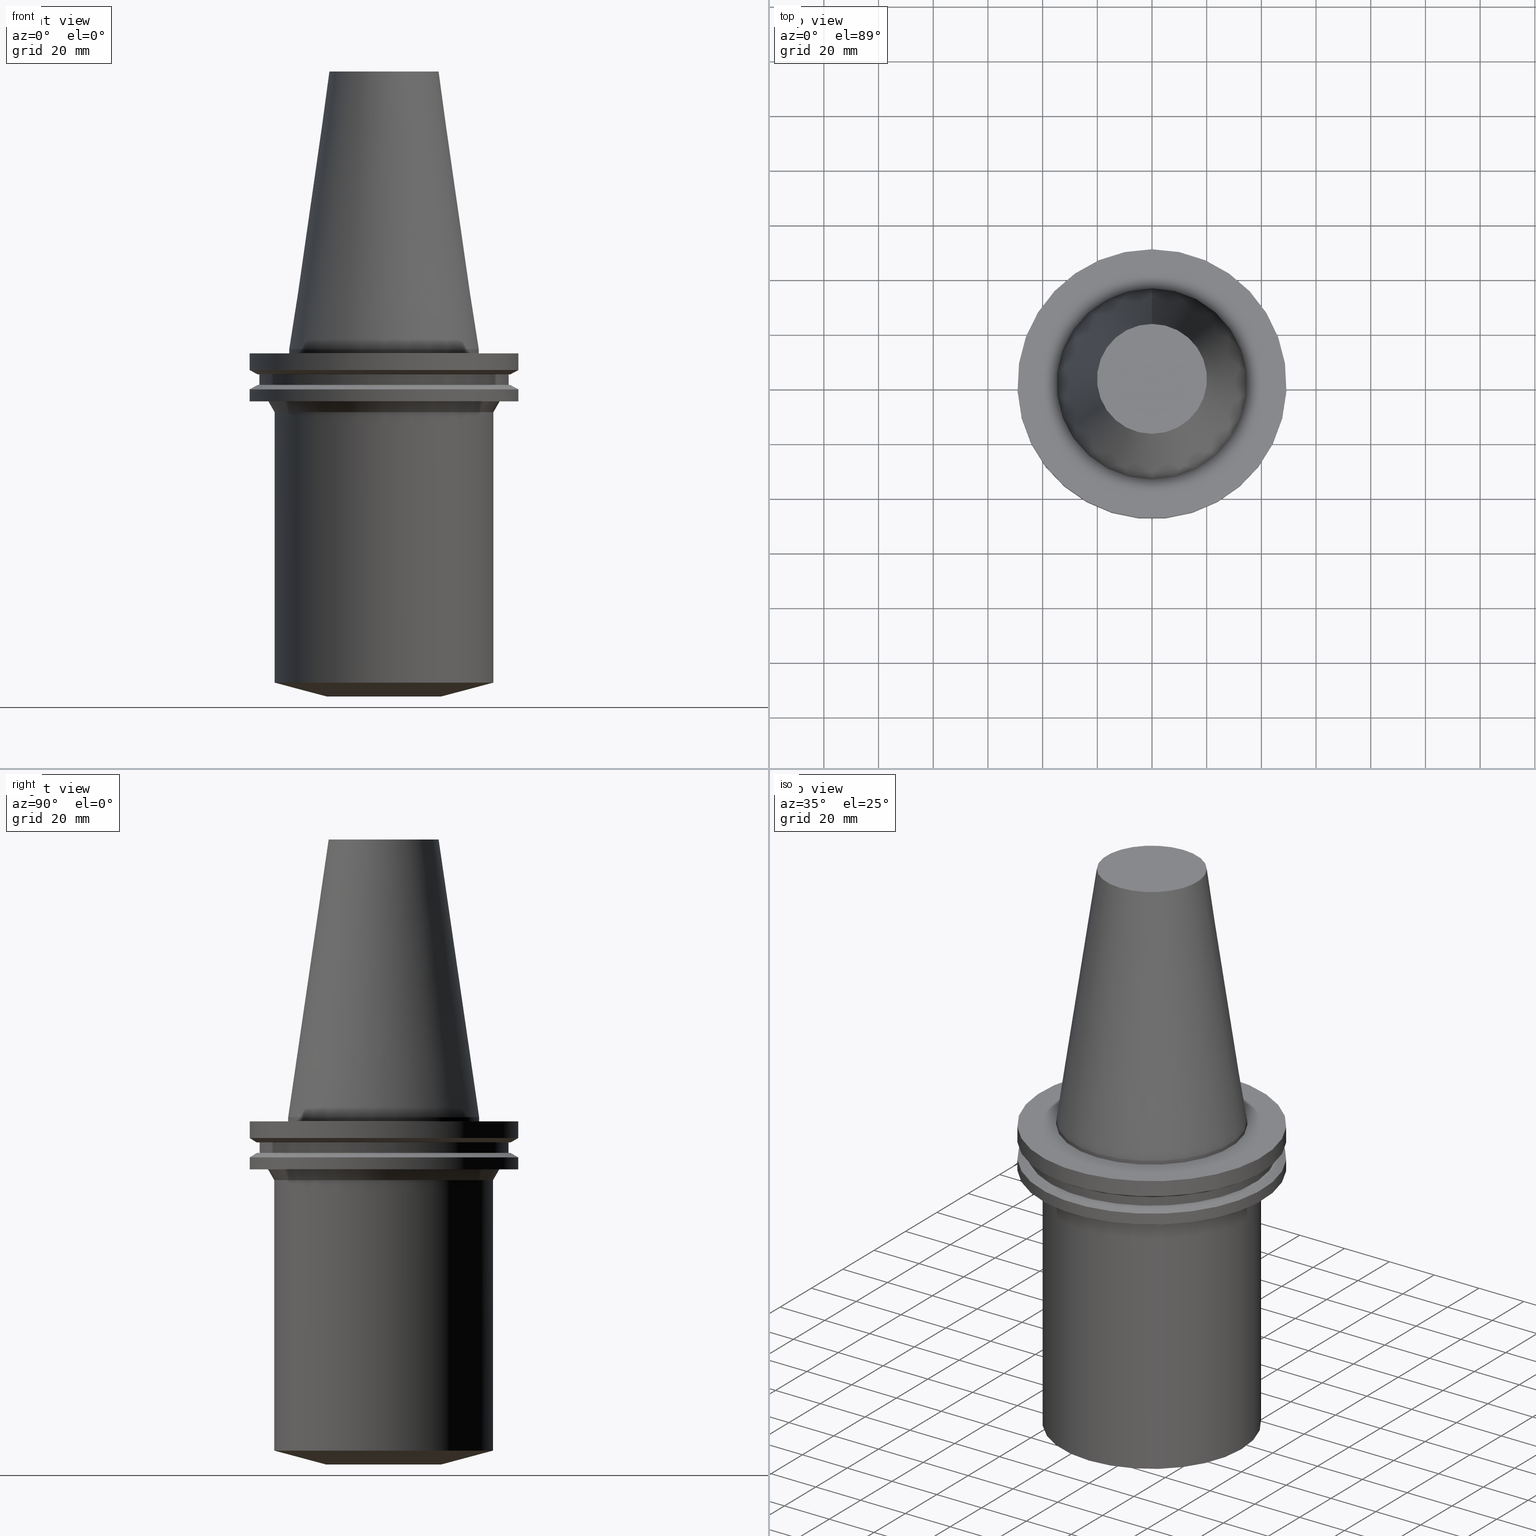
[diagram: canonical four-view strip — front | top / right | iso, engineering-drawing reading convention]
A machine part, canonical four-view strip (front | top / right | iso — engineering-drawing reading convention). The complete STEP part file that produces these views, byte-faithful:
ISO-10303-21;
HEADER;
FILE_DESCRIPTION((''),'1');
FILE_NAME('V:/01_Dxf_Field-HP\X2\FF71FF6FFF8CFF9F5916\X0\2013/BIGKAISER\X2\FF76FF80FF9BFF78FF9E63B28F095206\X0\_BKUS_201803/BCV50Y-BSL/BCV50Y-BSL1.500-5.stp','2018-03-13T06:55:56',(''),(''),'Spatial Interop R21 SP3','Kubotek KeyCreator 2011 V10.0.2 (22737)',' ');
FILE_SCHEMA(('automotive_design'));
ENDSEC;
DATA;
#1=MECHANICAL_DESIGN_GEOMETRIC_PRESENTATION_REPRESENTATION(' ',(#10,#11,#12,#13,#14,#15,#16,#17,#18,#19,#20,#21,#22,#23,#24,#25,#26,#27,#28,#29,#30,#31,#32,#33,#34,#35,#36,#37,#38,#39,#40,#41),#6);
#2=PRODUCT_DEFINITION_CONTEXT('',#42,'design');
#3=APPLICATION_PROTOCOL_DEFINITION('INTERNATIONAL STANDARD','automotive_design',1994,#42);
#4=PRODUCT_CATEGORY_RELATIONSHIP('NONE','NONE',#43,#44);
#5=SHAPE_DEFINITION_REPRESENTATION(#45,#46);
#6= (GEOMETRIC_REPRESENTATION_CONTEXT(3)GLOBAL_UNCERTAINTY_ASSIGNED_CONTEXT((#49))GLOBAL_UNIT_ASSIGNED_CONTEXT((#51,#52,#53))REPRESENTATION_CONTEXT('NONE','WORKSPACE'));
#10=STYLED_ITEM('',(#55),#56);
#11=STYLED_ITEM('',(#57),#58);
#12=STYLED_ITEM('',(#59,#60),#61);
#13=STYLED_ITEM('',(#62),#63);
#14=STYLED_ITEM('',(#64),#65);
#15=STYLED_ITEM('',(#66,#67),#68);
#16=STYLED_ITEM('',(#69),#70);
#17=STYLED_ITEM('',(#71,#72),#73);
#18=STYLED_ITEM('',(#74,#75),#76);
#19=STYLED_ITEM('',(#77,#78),#79);
#20=STYLED_ITEM('',(#80),#81);
#21=STYLED_ITEM('',(#82),#83);
#22=STYLED_ITEM('',(#84,#85),#86);
#23=STYLED_ITEM('',(#87,#88),#89);
#24=STYLED_ITEM('',(#90),#91);
#25=STYLED_ITEM('',(#92),#93);
#26=STYLED_ITEM('',(#94),#95);
#27=STYLED_ITEM('',(#96),#97);
#28=STYLED_ITEM('',(#98,#99),#100);
#29=STYLED_ITEM('',(#101),#102);
#30=STYLED_ITEM('',(#103,#104),#105);
#31=STYLED_ITEM('',(#106,#107),#108);
#32=STYLED_ITEM('',(#109,#110),#111);
#33=STYLED_ITEM('',(#112,#113),#114);
#34=STYLED_ITEM('',(#115,#116),#117);
#35=STYLED_ITEM('',(#118),#119);
#36=STYLED_ITEM('',(#120,#121),#122);
#37=STYLED_ITEM('',(#123),#124);
#38=STYLED_ITEM('',(#125,#126),#127);
#39=STYLED_ITEM('',(#128),#129);
#40=STYLED_ITEM('',(#130,#131),#132);
#41=STYLED_ITEM('',(#133,#134),#135);
#42=APPLICATION_CONTEXT(' ');
#43=PRODUCT_CATEGORY('part','NONE');
#44=PRODUCT_RELATED_PRODUCT_CATEGORY('detail',' ',(#136));
#45=PRODUCT_DEFINITION_SHAPE('NONE','NONE',#137);
#46=ADVANCED_BREP_SHAPE_REPRESENTATION('Unnamed[1]',(#127,#138),#6);
#49=UNCERTAINTY_MEASURE_WITH_UNIT(LENGTH_MEASURE(1.0E-006),#51,'','');
#51= (CONVERSION_BASED_UNIT('MILLIMETRE',#141)LENGTH_UNIT()NAMED_UNIT(#144));
#52= (NAMED_UNIT(#146)PLANE_ANGLE_UNIT()SI_UNIT($,.RADIAN.));
#53= (NAMED_UNIT(#146)SOLID_ANGLE_UNIT()SI_UNIT($,.STERADIAN.));
#55=PRESENTATION_STYLE_ASSIGNMENT((#152));
#56=EDGE_CURVE('Unnamed[1]',#153,#153,#154,.T.);
#57=PRESENTATION_STYLE_ASSIGNMENT((#155));
#58=EDGE_CURVE('Unnamed[1]',#156,#156,#157,.T.);
#59=PRESENTATION_STYLE_ASSIGNMENT((#158));
#60=PRESENTATION_STYLE_ASSIGNMENT((#159));
#61=ADVANCED_FACE('Unnamed[1]',(#160),#161,.T.);
#62=PRESENTATION_STYLE_ASSIGNMENT((#162));
#63=EDGE_CURVE('Unnamed[1]',#163,#163,#164,.T.);
#64=PRESENTATION_STYLE_ASSIGNMENT((#165));
#65=EDGE_CURVE('Unnamed[1]',#166,#166,#167,.T.);
#66=PRESENTATION_STYLE_ASSIGNMENT((#168));
#67=PRESENTATION_STYLE_ASSIGNMENT((#169));
#68=ADVANCED_FACE('Unnamed[1]',(#170,#171),#172,.T.);
#69=PRESENTATION_STYLE_ASSIGNMENT((#173));
#70=EDGE_CURVE('Unnamed[1]',#174,#174,#175,.T.);
#71=PRESENTATION_STYLE_ASSIGNMENT((#176));
#72=PRESENTATION_STYLE_ASSIGNMENT((#177));
#73=ADVANCED_FACE('Unnamed[1]',(#178,#179),#180,.T.);
#74=PRESENTATION_STYLE_ASSIGNMENT((#181));
#75=PRESENTATION_STYLE_ASSIGNMENT((#182));
#76=ADVANCED_FACE('Unnamed[1]',(#183,#184),#185,.T.);
#77=PRESENTATION_STYLE_ASSIGNMENT((#186));
#78=PRESENTATION_STYLE_ASSIGNMENT((#187));
#79=ADVANCED_FACE('Unnamed[1]',(#188,#189),#190,.T.);
#80=PRESENTATION_STYLE_ASSIGNMENT((#191));
#81=EDGE_CURVE('Unnamed[1]',#192,#192,#193,.T.);
#82=PRESENTATION_STYLE_ASSIGNMENT((#194));
#83=EDGE_CURVE('Unnamed[1]',#195,#195,#196,.T.);
#84=PRESENTATION_STYLE_ASSIGNMENT((#197));
#85=PRESENTATION_STYLE_ASSIGNMENT((#198));
#86=ADVANCED_FACE('Unnamed[1]',(#199,#200),#201,.T.);
#87=PRESENTATION_STYLE_ASSIGNMENT((#202));
#88=PRESENTATION_STYLE_ASSIGNMENT((#203));
#89=ADVANCED_FACE('Unnamed[1]',(#204),#205,.T.);
#90=PRESENTATION_STYLE_ASSIGNMENT((#206));
#91=EDGE_CURVE('Unnamed[1]',#207,#207,#208,.T.);
#92=PRESENTATION_STYLE_ASSIGNMENT((#209));
#93=EDGE_CURVE('Unnamed[1]',#210,#210,#211,.T.);
#94=PRESENTATION_STYLE_ASSIGNMENT((#212));
#95=EDGE_CURVE('Unnamed[1]',#213,#213,#214,.T.);
#96=PRESENTATION_STYLE_ASSIGNMENT((#215));
#97=EDGE_CURVE('Unnamed[1]',#216,#216,#217,.T.);
#98=PRESENTATION_STYLE_ASSIGNMENT((#218));
#99=PRESENTATION_STYLE_ASSIGNMENT((#219));
#100=ADVANCED_FACE('Unnamed[1]',(#220,#221),#222,.T.);
#101=PRESENTATION_STYLE_ASSIGNMENT((#223));
#102=EDGE_CURVE('Unnamed[1]',#224,#224,#225,.T.);
#103=PRESENTATION_STYLE_ASSIGNMENT((#226));
#104=PRESENTATION_STYLE_ASSIGNMENT((#227));
#105=ADVANCED_FACE('Unnamed[1]',(#228,#229),#230,.T.);
#106=PRESENTATION_STYLE_ASSIGNMENT((#231));
#107=PRESENTATION_STYLE_ASSIGNMENT((#232));
#108=ADVANCED_FACE('Unnamed[1]',(#233,#234),#235,.T.);
#109=PRESENTATION_STYLE_ASSIGNMENT((#236));
#110=PRESENTATION_STYLE_ASSIGNMENT((#237));
#111=ADVANCED_FACE('Unnamed[1]',(#238,#239),#240,.T.);
#112=PRESENTATION_STYLE_ASSIGNMENT((#241));
#113=PRESENTATION_STYLE_ASSIGNMENT((#242));
#114=ADVANCED_FACE('Unnamed[1]',(#243,#244),#245,.T.);
#115=PRESENTATION_STYLE_ASSIGNMENT((#246));
#116=PRESENTATION_STYLE_ASSIGNMENT((#247));
#117=ADVANCED_FACE('Unnamed[1]',(#248,#249),#250,.T.);
#118=PRESENTATION_STYLE_ASSIGNMENT((#251));
#119=EDGE_CURVE('Unnamed[1]',#252,#252,#253,.T.);
#120=PRESENTATION_STYLE_ASSIGNMENT((#254));
#121=PRESENTATION_STYLE_ASSIGNMENT((#255));
#122=ADVANCED_FACE('Unnamed[1]',(#256,#257),#258,.T.);
#123=PRESENTATION_STYLE_ASSIGNMENT((#259));
#124=EDGE_CURVE('Unnamed[1]',#260,#260,#261,.T.);
#125=PRESENTATION_STYLE_ASSIGNMENT((#262));
#126=PRESENTATION_STYLE_ASSIGNMENT((#263));
#127=MANIFOLD_SOLID_BREP('Unnamed[1]',#264);
#128=PRESENTATION_STYLE_ASSIGNMENT((#265));
#129=EDGE_CURVE('Unnamed[1]',#266,#266,#267,.T.);
#130=PRESENTATION_STYLE_ASSIGNMENT((#268));
#131=PRESENTATION_STYLE_ASSIGNMENT((#269));
#132=ADVANCED_FACE('Unnamed[1]',(#270,#271),#272,.T.);
#133=PRESENTATION_STYLE_ASSIGNMENT((#273));
#134=PRESENTATION_STYLE_ASSIGNMENT((#274));
#135=ADVANCED_FACE('Unnamed[1]',(#275,#276),#277,.T.);
#136=PRODUCT('Unnamed[1]','Unnamed[1]','PART-Unnamed[1]-DESC',(#278));
#137=PRODUCT_DEFINITION('NONE','NONE',#279,#2);
#138=AXIS2_PLACEMENT_3D('',#280,#281,#282);
#141=LENGTH_MEASURE_WITH_UNIT(LENGTH_MEASURE(1.0),#283);
#144=DIMENSIONAL_EXPONENTS(1.0,0.0,0.0,0.0,0.0,0.0,0.0);
#146=DIMENSIONAL_EXPONENTS(0.0,0.0,0.0,0.0,0.0,0.0,0.0);
#152=CURVE_STYLE('',#284,POSITIVE_LENGTH_MEASURE(1000.0),#285);
#153=VERTEX_POINT('',#286);
#154=CIRCLE('',#287,46.43053755);
#155=CURVE_STYLE('',#288,POSITIVE_LENGTH_MEASURE(1000.0),#289);
#156=VERTEX_POINT('',#290);
#157=CIRCLE('',#291,34.925);
#158=SURFACE_STYLE_USAGE(.BOTH.,#292);
#159=CURVE_STYLE('',#293,POSITIVE_LENGTH_MEASURE(1000.0),#294);
#160=FACE_OUTER_BOUND('',#295,.T.);
#161=PLANE('',#296);
#162=CURVE_STYLE('',#297,POSITIVE_LENGTH_MEASURE(1000.0),#298);
#163=VERTEX_POINT('',#299);
#164=CIRCLE('',#300,45.645);
#165=CURVE_STYLE('',#301,POSITIVE_LENGTH_MEASURE(1000.0),#302);
#166=VERTEX_POINT('',#303);
#167=CIRCLE('',#304,46.43053755);
#168=SURFACE_STYLE_USAGE(.BOTH.,#305);
#169=CURVE_STYLE('',#306,POSITIVE_LENGTH_MEASURE(1000.0),#307);
#170=FACE_OUTER_BOUND('',#308,.T.);
#171=FACE_BOUND('',#309,.T.);
#172=PLANE('',#310);
#173=CURVE_STYLE('',#311,POSITIVE_LENGTH_MEASURE(1000.0),#312);
#174=VERTEX_POINT('',#313);
#175=CIRCLE('',#314,20.9999999999951);
#176=SURFACE_STYLE_USAGE(.BOTH.,#315);
#177=CURVE_STYLE('',#316,POSITIVE_LENGTH_MEASURE(1000.0),#317);
#178=FACE_BOUND('',#318,.T.);
#179=FACE_BOUND('',#319,.T.);
#180=CONICAL_SURFACE('',#320,27.5166666648609,0.144812498273746);
#181=SURFACE_STYLE_USAGE(.BOTH.,#321);
#182=CURVE_STYLE('',#322,POSITIVE_LENGTH_MEASURE(1000.0),#323);
#183=FACE_BOUND('',#324,.T.);
#184=FACE_OUTER_BOUND('',#325,.T.);
#185=PLANE('',#326);
#186=SURFACE_STYLE_USAGE(.BOTH.,#327);
#187=CURVE_STYLE('',#328,POSITIVE_LENGTH_MEASURE(1000.0),#329);
#188=FACE_BOUND('',#330,.T.);
#189=FACE_BOUND('',#331,.T.);
#190=CONICAL_SURFACE('',#332,41.1402667816468,0.523598775598408);
#191=CURVE_STYLE('',#333,POSITIVE_LENGTH_MEASURE(1000.0),#334);
#192=VERTEX_POINT('',#335);
#193=CIRCLE('',#336,42.2805335632962);
#194=CURVE_STYLE('',#337,POSITIVE_LENGTH_MEASURE(1000.0),#338);
#195=VERTEX_POINT('',#339);
#196=CIRCLE('',#340,20.1083333297217);
#197=SURFACE_STYLE_USAGE(.BOTH.,#341);
#198=CURVE_STYLE('',#342,POSITIVE_LENGTH_MEASURE(1000.0),#343);
#199=FACE_BOUND('',#344,.T.);
#200=FACE_BOUND('',#345,.T.);
#201=CYLINDRICAL_SURFACE('',#346,34.925);
#202=SURFACE_STYLE_USAGE(.BOTH.,#347);
#203=CURVE_STYLE('',#348,POSITIVE_LENGTH_MEASURE(1000.0),#349);
#204=FACE_OUTER_BOUND('',#350,.T.);
#205=PLANE('',#351);
#206=CURVE_STYLE('',#352,POSITIVE_LENGTH_MEASURE(1000.0),#353);
#207=VERTEX_POINT('',#354);
#208=CIRCLE('',#355,49.2125);
#209=CURVE_STYLE('',#356,POSITIVE_LENGTH_MEASURE(1000.0),#357);
#210=VERTEX_POINT('',#358);
#211=CIRCLE('',#359,39.9999999999974);
#212=CURVE_STYLE('',#360,POSITIVE_LENGTH_MEASURE(1000.0),#361);
#213=VERTEX_POINT('',#362);
#214=CIRCLE('',#363,49.2125);
#215=CURVE_STYLE('',#364,POSITIVE_LENGTH_MEASURE(1000.0),#365);
#216=VERTEX_POINT('',#366);
#217=CIRCLE('',#367,34.925);
#218=SURFACE_STYLE_USAGE(.BOTH.,#368);
#219=CURVE_STYLE('',#369,POSITIVE_LENGTH_MEASURE(1000.0),#370);
#220=FACE_BOUND('',#371,.T.);
#221=FACE_BOUND('',#372,.T.);
#222=CYLINDRICAL_SURFACE('',#373,49.2125);
#223=CURVE_STYLE('',#374,POSITIVE_LENGTH_MEASURE(1000.0),#375);
#224=VERTEX_POINT('',#376);
#225=CIRCLE('',#377,49.2125);
#226=SURFACE_STYLE_USAGE(.BOTH.,#378);
#227=CURVE_STYLE('',#379,POSITIVE_LENGTH_MEASURE(1000.0),#380);
#228=FACE_BOUND('',#381,.T.);
#229=FACE_BOUND('',#382,.T.);
#230=CONICAL_SURFACE('',#383,30.499999999996,1.30899693899583);
#231=SURFACE_STYLE_USAGE(.BOTH.,#384);
#232=CURVE_STYLE('',#385,POSITIVE_LENGTH_MEASURE(1000.0),#386);
#233=FACE_BOUND('',#387,.T.);
#234=FACE_OUTER_BOUND('',#388,.T.);
#235=PLANE('',#389);
#236=SURFACE_STYLE_USAGE(.BOTH.,#390);
#237=CURVE_STYLE('',#391,POSITIVE_LENGTH_MEASURE(1000.0),#392);
#238=FACE_BOUND('',#393,.T.);
#239=FACE_BOUND('',#394,.T.);
#240=CONICAL_SURFACE('',#395,47.821518775,1.04719755103024);
#241=SURFACE_STYLE_USAGE(.BOTH.,#396);
#242=CURVE_STYLE('',#397,POSITIVE_LENGTH_MEASURE(1000.0),#398);
#243=FACE_OUTER_BOUND('',#399,.T.);
#244=FACE_BOUND('',#400,.T.);
#245=PLANE('',#401);
#246=SURFACE_STYLE_USAGE(.BOTH.,#402);
#247=CURVE_STYLE('',#403,POSITIVE_LENGTH_MEASURE(1000.0),#404);
#248=FACE_BOUND('',#405,.T.);
#249=FACE_BOUND('',#406,.T.);
#250=CYLINDRICAL_SURFACE('',#407,49.2125);
#251=CURVE_STYLE('',#408,POSITIVE_LENGTH_MEASURE(1000.0),#409);
#252=VERTEX_POINT('',#410);
#253=CIRCLE('',#411,45.645);
#254=SURFACE_STYLE_USAGE(.BOTH.,#412);
#255=CURVE_STYLE('',#413,POSITIVE_LENGTH_MEASURE(1000.0),#414);
#256=FACE_BOUND('',#415,.T.);
#257=FACE_BOUND('',#416,.T.);
#258=CYLINDRICAL_SURFACE('',#417,39.9999999999972);
#259=CURVE_STYLE('',#418,POSITIVE_LENGTH_MEASURE(1000.0),#419);
#260=VERTEX_POINT('',#420);
#261=CIRCLE('',#421,39.9999999999969);
#262=SURFACE_STYLE_USAGE(.BOTH.,#422);
#263=CURVE_STYLE('',#423,POSITIVE_LENGTH_MEASURE(1000.0),#424);
#264=CLOSED_SHELL('',(#61,#73,#86,#68,#117,#111,#108,#132,#114,#135,#100,#76,#79,#122,#105,#89));
#265=CURVE_STYLE('',#425,POSITIVE_LENGTH_MEASURE(1000.0),#426);
#266=VERTEX_POINT('',#427);
#267=CIRCLE('',#428,49.2125);
#268=SURFACE_STYLE_USAGE(.BOTH.,#429);
#269=CURVE_STYLE('',#430,POSITIVE_LENGTH_MEASURE(1000.0),#431);
#270=FACE_BOUND('',#432,.T.);
#271=FACE_BOUND('',#433,.T.);
#272=CYLINDRICAL_SURFACE('',#434,45.645);
#273=SURFACE_STYLE_USAGE(.BOTH.,#435);
#274=CURVE_STYLE('',#436,POSITIVE_LENGTH_MEASURE(1000.0),#437);
#275=FACE_BOUND('',#438,.T.);
#276=FACE_BOUND('',#439,.T.);
#277=CONICAL_SURFACE('',#440,47.821518775,1.04719755103023);
#278=PRODUCT_CONTEXT('',#42,'mechanical');
#279=PRODUCT_DEFINITION_FORMATION_WITH_SPECIFIED_SOURCE(' ','NONE',#136,.NOT_KNOWN.);
#280=CARTESIAN_POINT('',(0.0,0.0,0.0));
#281=DIRECTION('',(0.0,0.0,1.0));
#282=DIRECTION('',(1.0,0.0,0.0));
#283= (NAMED_UNIT(#144)LENGTH_UNIT()SI_UNIT(.MILLI.,.METRE.));
#284=DRAUGHTING_PRE_DEFINED_CURVE_FONT('continuous');
#285=COLOUR_RGB('',0.0,1.0,0.0);
#286=CARTESIAN_POINT('',(5.63337527607782E-016,46.43053755,-9.2));
#287=AXIS2_PLACEMENT_3D('',#442,#443,#444);
#288=DRAUGHTING_PRE_DEFINED_CURVE_FONT('continuous');
#289=COLOUR_RGB('',0.0,1.0,0.0);
#290=CARTESIAN_POINT('',(-4.30483861169435E-031,34.925,4.27707894602213E-015));
#291=AXIS2_PLACEMENT_3D('',#445,#446,#447);
#292=SURFACE_SIDE_STYLE('',(#448));
#293=DRAUGHTING_PRE_DEFINED_CURVE_FONT('continuous');
#294=COLOUR_RGB('',0.0,1.0,0.0);
#295=EDGE_LOOP('',(#449));
#296=AXIS2_PLACEMENT_3D('',#450,#451,#452);
#297=DRAUGHTING_PRE_DEFINED_CURVE_FONT('continuous');
#298=COLOUR_RGB('',0.0,1.0,0.0);
#299=CARTESIAN_POINT('',(7.98469713044073E-016,45.645,-13.04));
#300=AXIS2_PLACEMENT_3D('',#453,#454,#455);
#301=DRAUGHTING_PRE_DEFINED_CURVE_FONT('continuous');
#302=COLOUR_RGB('',0.0,1.0,0.0);
#303=CARTESIAN_POINT('',(7.98469713044073E-016,46.43053755,-13.04));
#304=AXIS2_PLACEMENT_3D('',#456,#457,#458);
#305=SURFACE_SIDE_STYLE('',(#459));
#306=DRAUGHTING_PRE_DEFINED_CURVE_FONT('continuous');
#307=COLOUR_RGB('',0.0,1.0,0.0);
#308=EDGE_LOOP('',(#460));
#309=EDGE_LOOP('',(#461));
#310=AXIS2_PLACEMENT_3D('',#462,#463,#464);
#311=DRAUGHTING_PRE_DEFINED_CURVE_FONT('continuous');
#312=COLOUR_RGB('',0.0,1.0,0.0);
#313=CARTESIAN_POINT('',(7.77650717458429E-015,20.9999999999951,-126.999999999977));
#314=AXIS2_PLACEMENT_3D('',#465,#466,#467);
#315=SURFACE_SIDE_STYLE('',(#468));
#316=DRAUGHTING_PRE_DEFINED_CURVE_FONT('continuous');
#317=COLOUR_RGB('',0.0,1.0,0.0);
#318=EDGE_LOOP('',(#469));
#319=EDGE_LOOP('',(#470));
#320=AXIS2_PLACEMENT_3D('',#471,#472,#473);
#321=SURFACE_SIDE_STYLE('',(#474));
#322=DRAUGHTING_PRE_DEFINED_CURVE_FONT('continuous');
#323=COLOUR_RGB('',0.0,1.0,0.0);
#324=EDGE_LOOP('',(#475));
#325=EDGE_LOOP('',(#476));
#326=AXIS2_PLACEMENT_3D('',#477,#478,#479);
#327=SURFACE_SIDE_STYLE('',(#480));
#328=DRAUGHTING_PRE_DEFINED_CURVE_FONT('continuous');
#329=COLOUR_RGB('',0.0,1.0,0.0);
#330=EDGE_LOOP('',(#481));
#331=EDGE_LOOP('',(#482));
#332=AXIS2_PLACEMENT_3D('',#483,#484,#485);
#333=DRAUGHTING_PRE_DEFINED_CURVE_FONT('continuous');
#334=COLOUR_RGB('',0.0,1.0,0.0);
#335=CARTESIAN_POINT('',(1.16647607618786E-015,42.2805335632962,-19.0500000000001));
#336=AXIS2_PLACEMENT_3D('',#486,#487,#488);
#337=DRAUGHTING_PRE_DEFINED_CURVE_FONT('continuous');
#338=COLOUR_RGB('',0.0,1.0,0.0);
#339=CARTESIAN_POINT('',(-6.22120573966855E-015,20.1083333297217,101.6));
#340=AXIS2_PLACEMENT_3D('',#489,#490,#491);
#341=SURFACE_SIDE_STYLE('',(#492));
#342=DRAUGHTING_PRE_DEFINED_CURVE_FONT('continuous');
#343=COLOUR_RGB('',0.0,1.0,0.0);
#344=EDGE_LOOP('',(#493));
#345=EDGE_LOOP('',(#494));
#346=AXIS2_PLACEMENT_3D('',#495,#496,#497);
#347=SURFACE_SIDE_STYLE('',(#498));
#348=DRAUGHTING_PRE_DEFINED_CURVE_FONT('continuous');
#349=COLOUR_RGB('',0.0,1.0,0.0);
#350=EDGE_LOOP('',(#499));
#351=AXIS2_PLACEMENT_3D('',#500,#501,#502);
#352=DRAUGHTING_PRE_DEFINED_CURVE_FONT('continuous');
#353=COLOUR_RGB('',0.0,1.0,0.0);
#354=CARTESIAN_POINT('',(4.64988177918915E-016,49.2125,-7.59383323));
#355=AXIS2_PLACEMENT_3D('',#503,#504,#505);
#356=DRAUGHTING_PRE_DEFINED_CURVE_FONT('continuous');
#357=COLOUR_RGB('',0.0,1.0,0.0);
#358=CARTESIAN_POINT('',(1.40834381901937E-015,39.9999999999974,-22.9999999999986));
#359=AXIS2_PLACEMENT_3D('',#506,#507,#508);
#360=DRAUGHTING_PRE_DEFINED_CURVE_FONT('continuous');
#361=COLOUR_RGB('',0.0,1.0,0.0);
#362=CARTESIAN_POINT('',(8.96819062732941E-016,49.2125,-14.64616677));
#363=AXIS2_PLACEMENT_3D('',#509,#510,#511);
#364=DRAUGHTING_PRE_DEFINED_CURVE_FONT('continuous');
#365=COLOUR_RGB('',0.0,1.0,0.0);
#366=CARTESIAN_POINT('',(9.18485099360511E-017,34.925,-1.5));
#367=AXIS2_PLACEMENT_3D('',#512,#513,#514);
#368=SURFACE_SIDE_STYLE('',(#515));
#369=DRAUGHTING_PRE_DEFINED_CURVE_FONT('continuous');
#370=COLOUR_RGB('',0.0,1.0,0.0);
#371=EDGE_LOOP('',(#516));
#372=EDGE_LOOP('',(#517));
#373=AXIS2_PLACEMENT_3D('',#518,#519,#520);
#374=DRAUGHTING_PRE_DEFINED_CURVE_FONT('continuous');
#375=COLOUR_RGB('',0.0,1.0,0.0);
#376=CARTESIAN_POINT('',(9.18485099360509E-017,49.2125,-1.49999999999999));
#377=AXIS2_PLACEMENT_3D('',#521,#522,#523);
#378=SURFACE_SIDE_STYLE('',(#524));
#379=DRAUGHTING_PRE_DEFINED_CURVE_FONT('continuous');
#380=COLOUR_RGB('',0.0,1.0,0.0);
#381=EDGE_LOOP('',(#525));
#382=EDGE_LOOP('',(#526));
#383=AXIS2_PLACEMENT_3D('',#527,#528,#529);
#384=SURFACE_SIDE_STYLE('',(#530));
#385=DRAUGHTING_PRE_DEFINED_CURVE_FONT('continuous');
#386=COLOUR_RGB('',0.0,1.0,0.0);
#387=EDGE_LOOP('',(#531));
#388=EDGE_LOOP('',(#532));
#389=AXIS2_PLACEMENT_3D('',#533,#534,#535);
#390=SURFACE_SIDE_STYLE('',(#536));
#391=DRAUGHTING_PRE_DEFINED_CURVE_FONT('continuous');
#392=COLOUR_RGB('',0.0,1.0,0.0);
#393=EDGE_LOOP('',(#537));
#394=EDGE_LOOP('',(#538));
#395=AXIS2_PLACEMENT_3D('',#539,#540,#541);
#396=SURFACE_SIDE_STYLE('',(#542));
#397=DRAUGHTING_PRE_DEFINED_CURVE_FONT('continuous');
#398=COLOUR_RGB('',0.0,1.0,0.0);
#399=EDGE_LOOP('',(#543));
#400=EDGE_LOOP('',(#544));
#401=AXIS2_PLACEMENT_3D('',#545,#546,#547);
#402=SURFACE_SIDE_STYLE('',(#548));
#403=DRAUGHTING_PRE_DEFINED_CURVE_FONT('continuous');
#404=COLOUR_RGB('',0.0,1.0,0.0);
#405=EDGE_LOOP('',(#549));
#406=EDGE_LOOP('',(#550));
#407=AXIS2_PLACEMENT_3D('',#551,#552,#553);
#408=DRAUGHTING_PRE_DEFINED_CURVE_FONT('continuous');
#409=COLOUR_RGB('',0.0,1.0,0.0);
#410=CARTESIAN_POINT('',(5.63337527607782E-016,45.645,-9.2));
#411=AXIS2_PLACEMENT_3D('',#554,#555,#556);
#412=SURFACE_SIDE_STYLE('',(#557));
#413=DRAUGHTING_PRE_DEFINED_CURVE_FONT('continuous');
#414=COLOUR_RGB('',0.0,1.0,0.0);
#415=EDGE_LOOP('',(#558));
#416=EDGE_LOOP('',(#559));
#417=AXIS2_PLACEMENT_3D('',#560,#561,#562);
#418=DRAUGHTING_PRE_DEFINED_CURVE_FONT('continuous');
#419=COLOUR_RGB('',0.0,1.0,0.0);
#420=CARTESIAN_POINT('',(7.46477120978171E-015,39.9999999999969,-121.908965343787));
#421=AXIS2_PLACEMENT_3D('',#563,#564,#565);
#422=SURFACE_SIDE_STYLE('',(#566));
#423=DRAUGHTING_PRE_DEFINED_CURVE_FONT('continuous');
#424=COLOUR_RGB('',0.0,1.0,0.0);
#425=DRAUGHTING_PRE_DEFINED_CURVE_FONT('continuous');
#426=COLOUR_RGB('',0.0,1.0,0.0);
#427=CARTESIAN_POINT('',(1.16647607618785E-015,49.2125,-19.05));
#428=AXIS2_PLACEMENT_3D('',#567,#568,#569);
#429=SURFACE_SIDE_STYLE('',(#570));
#430=DRAUGHTING_PRE_DEFINED_CURVE_FONT('continuous');
#431=COLOUR_RGB('',0.0,1.0,0.0);
#432=EDGE_LOOP('',(#571));
#433=EDGE_LOOP('',(#572));
#434=AXIS2_PLACEMENT_3D('',#573,#574,#575);
#435=SURFACE_SIDE_STYLE('',(#576));
#436=DRAUGHTING_PRE_DEFINED_CURVE_FONT('continuous');
#437=COLOUR_RGB('',0.0,1.0,0.0);
#438=EDGE_LOOP('',(#577));
#439=EDGE_LOOP('',(#578));
#440=AXIS2_PLACEMENT_3D('',#579,#580,#581);
#442=CARTESIAN_POINT('',(5.63337527607783E-016,1.12667505521557E-015,-9.2));
#443=DIRECTION('',(6.12323399573677E-017,1.22464679914735E-016,-1.0));
#444=DIRECTION('',(-1.23259516440783E-032,1.0,1.22464679914735E-016));
#445=CARTESIAN_POINT('',(0.0,0.0,0.0));
#446=DIRECTION('',(6.12323399573677E-017,1.22464679914735E-016,-1.0));
#447=DIRECTION('',(-1.23259516440783E-032,1.0,1.22464679914735E-016));
#448=SURFACE_STYLE_FILL_AREA(#582);
#449=ORIENTED_EDGE('',*,*,#83,.F.);
#450=CARTESIAN_POINT('',(-6.22120573966855E-015,10.0541666648608,101.6));
#451=DIRECTION('',(-6.12323399573677E-017,-1.22464679914735E-016,1.0));
#452=DIRECTION('',(1.23259516440783E-032,-1.0,-1.22464679914735E-016));
#453=CARTESIAN_POINT('',(7.98469713044074E-016,1.59693942608815E-015,-13.04));
#454=DIRECTION('',(6.12323399573677E-017,1.22464679914735E-016,-1.0));
#455=DIRECTION('',(-1.23259516440783E-032,1.0,1.22464679914735E-016));
#456=CARTESIAN_POINT('',(7.98469713044074E-016,1.59693942608815E-015,-13.04));
#457=DIRECTION('',(6.12323399573677E-017,1.22464679914735E-016,-1.0));
#458=DIRECTION('',(-1.23259516440783E-032,1.0,1.22464679914735E-016));
#459=SURFACE_STYLE_FILL_AREA(#583);
#460=ORIENTED_EDGE('',*,*,#102,.F.);
#461=ORIENTED_EDGE('',*,*,#97,.T.);
#462=CARTESIAN_POINT('',(9.1848509936051E-017,42.06875,-1.49999999999999));
#463=DIRECTION('',(-6.12323399573677E-017,-1.22464679914735E-016,1.0));
#464=DIRECTION('',(1.23259516440783E-032,-1.0,-1.22464679914735E-016));
#465=CARTESIAN_POINT('',(7.77650717458429E-015,1.55530143491686E-014,-126.999999999977));
#466=DIRECTION('',(6.12323399573677E-017,1.22464679914735E-016,-1.0));
#467=DIRECTION('',(-1.23259516440783E-032,1.0,1.22464679914735E-016));
#468=SURFACE_STYLE_FILL_AREA(#584);
#469=ORIENTED_EDGE('',*,*,#58,.F.);
#470=ORIENTED_EDGE('',*,*,#83,.T.);
#471=CARTESIAN_POINT('',(-3.11060286983428E-015,-6.22120573966855E-015,50.8));
#472=DIRECTION('',(6.12323399573677E-017,1.22464679914735E-016,-1.0));
#473=DIRECTION('',(-1.23259516440783E-032,1.0,1.22464679914735E-016));
#474=SURFACE_STYLE_FILL_AREA(#585);
#475=ORIENTED_EDGE('',*,*,#81,.F.);
#476=ORIENTED_EDGE('',*,*,#129,.T.);
#477=CARTESIAN_POINT('',(1.16647607618786E-015,45.7465167816481,-19.05));
#478=DIRECTION('',(6.12323399573677E-017,7.29762802748254E-015,-1.0));
#479=DIRECTION('',(-4.51677992991994E-031,1.0,7.29762802748254E-015));
#480=SURFACE_STYLE_FILL_AREA(#586);
#481=ORIENTED_EDGE('',*,*,#93,.F.);
#482=ORIENTED_EDGE('',*,*,#81,.T.);
#483=CARTESIAN_POINT('',(1.28740994760362E-015,2.57481989520723E-015,-21.0249999999994));
#484=DIRECTION('',(-6.12323399573677E-017,-1.22464679914735E-016,1.0));
#485=DIRECTION('',(-1.23259516440783E-032,1.0,1.22464679914735E-016));
#486=CARTESIAN_POINT('',(1.16647607618786E-015,2.33295215237572E-015,-19.0500000000001));
#487=DIRECTION('',(6.12323399573677E-017,1.22464679914735E-016,-1.0));
#488=DIRECTION('',(-1.23259516440783E-032,1.0,1.22464679914735E-016));
#489=CARTESIAN_POINT('',(-6.22120573966855E-015,-1.24424114793371E-014,101.6));
#490=DIRECTION('',(6.12323399573676E-017,1.22464679914735E-016,-1.0));
#491=DIRECTION('',(-1.23259516440783E-032,1.0,1.22464679914735E-016));
#492=SURFACE_STYLE_FILL_AREA(#587);
#493=ORIENTED_EDGE('',*,*,#97,.F.);
#494=ORIENTED_EDGE('',*,*,#58,.T.);
#495=CARTESIAN_POINT('',(4.59242549680257E-017,9.18485099360515E-017,-0.75));
#496=DIRECTION('',(6.12323399573677E-017,1.22464679914735E-016,-1.0));
#497=DIRECTION('',(-1.23259516440783E-032,1.0,1.22464679914735E-016));
#498=SURFACE_STYLE_FILL_AREA(#588);
#499=ORIENTED_EDGE('',*,*,#70,.T.);
#500=CARTESIAN_POINT('',(7.77650717458428E-015,10.4999999999976,-126.999999999977));
#501=DIRECTION('',(6.12323399573677E-017,-4.61448689182037E-015,-1.0));
#502=DIRECTION('',(2.77728677357993E-031,1.0,-4.61448689182037E-015));
#503=CARTESIAN_POINT('',(4.64988177918915E-016,9.29976355837831E-016,-7.59383323));
#504=DIRECTION('',(6.12323399573677E-017,1.22464679914735E-016,-1.0));
#505=DIRECTION('',(-1.23259516440783E-032,1.0,1.22464679914735E-016));
#506=CARTESIAN_POINT('',(1.40834381901937E-015,2.81668763803874E-015,-22.9999999999986));
#507=DIRECTION('',(6.12323399573677E-017,1.22464679914735E-016,-1.0));
#508=DIRECTION('',(-1.23259516440783E-032,1.0,1.22464679914735E-016));
#509=CARTESIAN_POINT('',(8.96819062732942E-016,1.79363812546588E-015,-14.64616677));
#510=DIRECTION('',(6.12323399573677E-017,1.22464679914735E-016,-1.0));
#511=DIRECTION('',(-1.23259516440783E-032,1.0,1.22464679914735E-016));
#512=CARTESIAN_POINT('',(9.18485099360515E-017,1.83697019872103E-016,-1.5));
#513=DIRECTION('',(6.12323399573677E-017,1.22464679914735E-016,-1.0));
#514=DIRECTION('',(-1.23259516440783E-032,1.0,1.22464679914735E-016));
#515=SURFACE_STYLE_FILL_AREA(#589);
#516=ORIENTED_EDGE('',*,*,#129,.F.);
#517=ORIENTED_EDGE('',*,*,#95,.T.);
#518=CARTESIAN_POINT('',(1.0316475694604E-015,2.0632951389208E-015,-16.848083385));
#519=DIRECTION('',(6.12323399573677E-017,1.22464679914735E-016,-1.0));
#520=DIRECTION('',(-1.23259516440783E-032,1.0,1.22464679914735E-016));
#521=CARTESIAN_POINT('',(9.18485099360515E-017,1.83697019872103E-016,-1.5));
#522=DIRECTION('',(6.12323399573677E-017,1.22464679914735E-016,-1.0));
#523=DIRECTION('',(-1.23259516440783E-032,1.0,1.22464679914735E-016));
#524=SURFACE_STYLE_FILL_AREA(#590);
#525=ORIENTED_EDGE('',*,*,#70,.F.);
#526=ORIENTED_EDGE('',*,*,#124,.T.);
#527=CARTESIAN_POINT('',(7.620639192183E-015,1.5241278384366E-014,-124.454482671882));
#528=DIRECTION('',(-6.12323399573677E-017,-1.22464679914735E-016,1.0));
#529=DIRECTION('',(-1.23259516440783E-032,1.0,1.22464679914735E-016));
#530=SURFACE_STYLE_FILL_AREA(#591);
#531=ORIENTED_EDGE('',*,*,#119,.F.);
#532=ORIENTED_EDGE('',*,*,#56,.T.);
#533=CARTESIAN_POINT('',(5.63337527607782E-016,46.037768775,-9.2));
#534=DIRECTION('',(6.12323399573677E-017,1.22464679914735E-016,-1.0));
#535=DIRECTION('',(-1.23259516440783E-032,1.0,1.22464679914735E-016));
#536=SURFACE_STYLE_FILL_AREA(#592);
#537=ORIENTED_EDGE('',*,*,#56,.F.);
#538=ORIENTED_EDGE('',*,*,#91,.T.);
#539=CARTESIAN_POINT('',(5.14162852763349E-016,1.0283257055267E-015,-8.39691661500001));
#540=DIRECTION('',(-6.12323399573677E-017,-1.22464679914735E-016,1.0));
#541=DIRECTION('',(-1.23259516440783E-032,1.0,1.22464679914735E-016));
#542=SURFACE_STYLE_FILL_AREA(#593);
#543=ORIENTED_EDGE('',*,*,#65,.F.);
#544=ORIENTED_EDGE('',*,*,#63,.T.);
#545=CARTESIAN_POINT('',(7.98469713044073E-016,46.037768775,-13.04));
#546=DIRECTION('',(-6.12323399573677E-017,-1.22464679914735E-016,1.0));
#547=DIRECTION('',(1.23259516440783E-032,-1.0,-1.22464679914735E-016));
#548=SURFACE_STYLE_FILL_AREA(#594);
#549=ORIENTED_EDGE('',*,*,#91,.F.);
#550=ORIENTED_EDGE('',*,*,#102,.T.);
#551=CARTESIAN_POINT('',(2.78418343927483E-016,5.56836687854967E-016,-4.546916615));
#552=DIRECTION('',(6.12323399573677E-017,1.22464679914735E-016,-1.0));
#553=DIRECTION('',(-1.23259516440783E-032,1.0,1.22464679914735E-016));
#554=CARTESIAN_POINT('',(5.63337527607783E-016,1.12667505521557E-015,-9.2));
#555=DIRECTION('',(6.12323399573677E-017,1.22464679914735E-016,-1.0));
#556=DIRECTION('',(-1.23259516440783E-032,1.0,1.22464679914735E-016));
#557=SURFACE_STYLE_FILL_AREA(#595);
#558=ORIENTED_EDGE('',*,*,#124,.F.);
#559=ORIENTED_EDGE('',*,*,#93,.T.);
#560=CARTESIAN_POINT('',(4.43655751440054E-015,8.87311502880108E-015,-72.4544826718927));
#561=DIRECTION('',(6.12323399573677E-017,1.22464679914735E-016,-1.0));
#562=DIRECTION('',(-1.23259516440783E-032,1.0,1.22464679914735E-016));
#563=CARTESIAN_POINT('',(7.46477120978171E-015,1.49295424195634E-014,-121.908965343787));
#564=DIRECTION('',(6.12323399573677E-017,1.22464679914735E-016,-1.0));
#565=DIRECTION('',(-1.23259516440783E-032,1.0,1.22464679914735E-016));
#566=SURFACE_STYLE_FILL_AREA(#596);
#567=CARTESIAN_POINT('',(1.16647607618785E-015,2.33295215237571E-015,-19.05));
#568=DIRECTION('',(6.12323399573677E-017,1.22464679914735E-016,-1.0));
#569=DIRECTION('',(-1.23259516440783E-032,1.0,1.22464679914735E-016));
#570=SURFACE_STYLE_FILL_AREA(#597);
#571=ORIENTED_EDGE('',*,*,#63,.F.);
#572=ORIENTED_EDGE('',*,*,#119,.T.);
#573=CARTESIAN_POINT('',(6.80903620325929E-016,1.36180724065186E-015,-11.12));
#574=DIRECTION('',(6.12323399573677E-017,1.22464679914735E-016,-1.0));
#575=DIRECTION('',(-1.23259516440783E-032,1.0,1.22464679914735E-016));
#576=SURFACE_STYLE_FILL_AREA(#598);
#577=ORIENTED_EDGE('',*,*,#95,.F.);
#578=ORIENTED_EDGE('',*,*,#65,.T.);
#579=CARTESIAN_POINT('',(8.47644387888508E-016,1.69528877577702E-015,-13.843083385));
#580=DIRECTION('',(6.12323399573677E-017,1.22464679914735E-016,-1.0));
#581=DIRECTION('',(-1.23259516440783E-032,1.0,1.22464679914735E-016));
#582=FILL_AREA_STYLE('',(#599));
#583=FILL_AREA_STYLE('',(#600));
#584=FILL_AREA_STYLE('',(#601));
#585=FILL_AREA_STYLE('',(#602));
#586=FILL_AREA_STYLE('',(#603));
#587=FILL_AREA_STYLE('',(#604));
#588=FILL_AREA_STYLE('',(#605));
#589=FILL_AREA_STYLE('',(#606));
#590=FILL_AREA_STYLE('',(#607));
#591=FILL_AREA_STYLE('',(#608));
#592=FILL_AREA_STYLE('',(#609));
#593=FILL_AREA_STYLE('',(#610));
#594=FILL_AREA_STYLE('',(#611));
#595=FILL_AREA_STYLE('',(#612));
#596=FILL_AREA_STYLE('',(#613));
#597=FILL_AREA_STYLE('',(#614));
#598=FILL_AREA_STYLE('',(#615));
#599=FILL_AREA_STYLE_COLOUR('',#616);
#600=FILL_AREA_STYLE_COLOUR('',#617);
#601=FILL_AREA_STYLE_COLOUR('',#618);
#602=FILL_AREA_STYLE_COLOUR('',#619);
#603=FILL_AREA_STYLE_COLOUR('',#620);
#604=FILL_AREA_STYLE_COLOUR('',#621);
#605=FILL_AREA_STYLE_COLOUR('',#622);
#606=FILL_AREA_STYLE_COLOUR('',#623);
#607=FILL_AREA_STYLE_COLOUR('',#624);
#608=FILL_AREA_STYLE_COLOUR('',#625);
#609=FILL_AREA_STYLE_COLOUR('',#626);
#610=FILL_AREA_STYLE_COLOUR('',#627);
#611=FILL_AREA_STYLE_COLOUR('',#628);
#612=FILL_AREA_STYLE_COLOUR('',#629);
#613=FILL_AREA_STYLE_COLOUR('',#630);
#614=FILL_AREA_STYLE_COLOUR('',#631);
#615=FILL_AREA_STYLE_COLOUR('',#632);
#616=COLOUR_RGB('',0.0,1.0,0.0);
#617=COLOUR_RGB('',0.0,1.0,0.0);
#618=COLOUR_RGB('',0.0,1.0,0.0);
#619=COLOUR_RGB('',0.0,1.0,0.0);
#620=COLOUR_RGB('',0.0,1.0,0.0);
#621=COLOUR_RGB('',0.0,1.0,0.0);
#622=COLOUR_RGB('',0.0,1.0,0.0);
#623=COLOUR_RGB('',0.0,1.0,0.0);
#624=COLOUR_RGB('',0.0,1.0,0.0);
#625=COLOUR_RGB('',0.0,1.0,0.0);
#626=COLOUR_RGB('',0.0,1.0,0.0);
#627=COLOUR_RGB('',0.0,1.0,0.0);
#628=COLOUR_RGB('',0.0,1.0,0.0);
#629=COLOUR_RGB('',0.0,1.0,0.0);
#630=COLOUR_RGB('',0.0,1.0,0.0);
#631=COLOUR_RGB('',0.0,1.0,0.0);
#632=COLOUR_RGB('',0.0,1.0,0.0);
ENDSEC;
END-ISO-10303-21;
